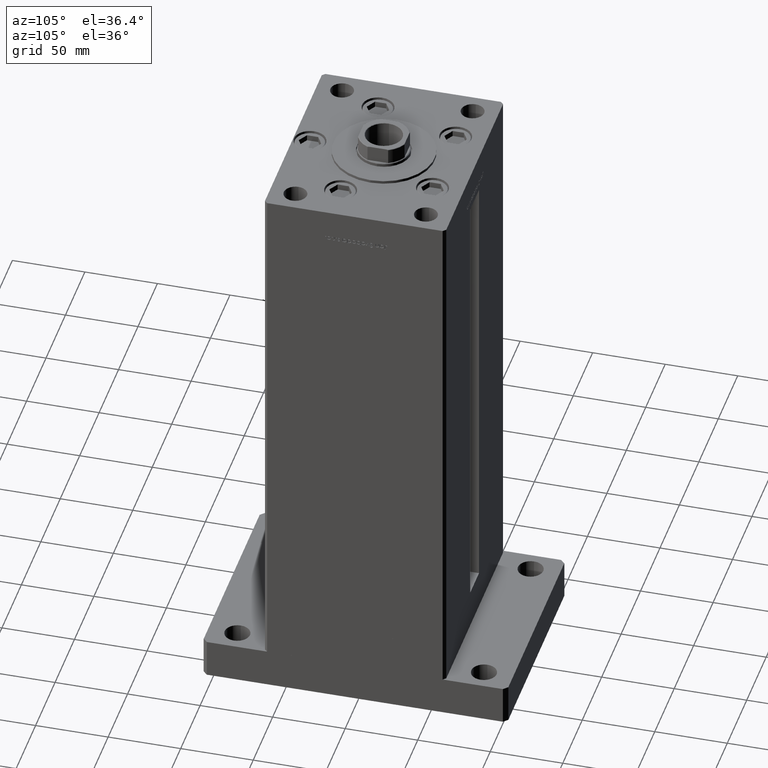
[diagram: clean part render]
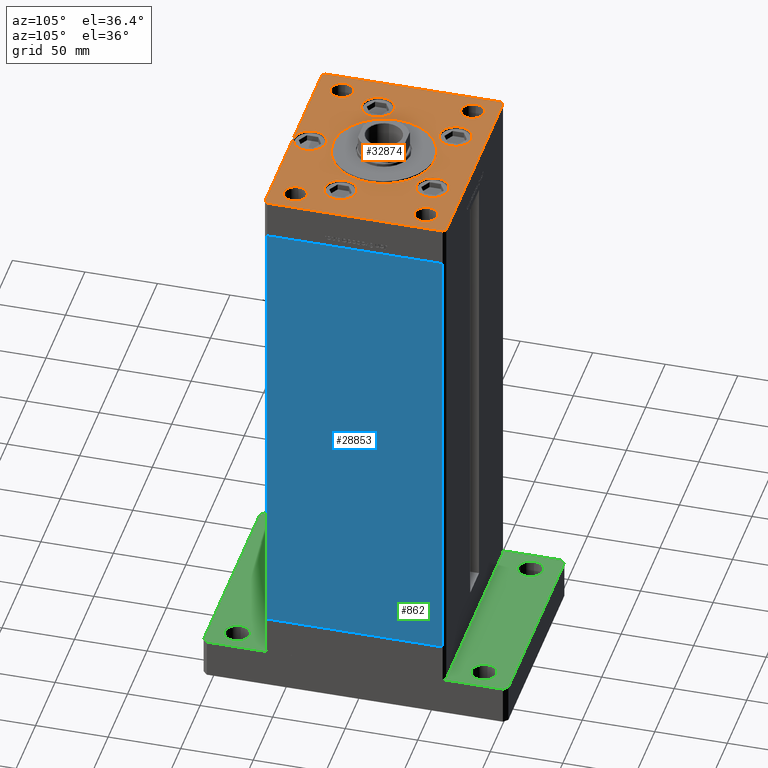
[diagram: same view with three faces highlighted in distinct colors, each labeled with its STEP entity id]
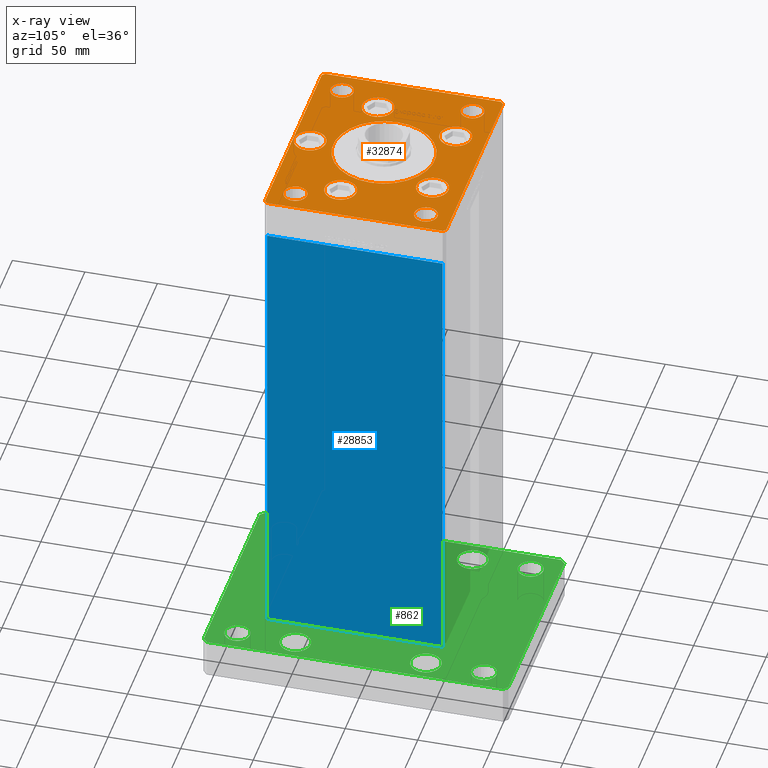
[diagram: x-ray of the same camera — body ghosted, the three highlighted faces saturated]
A machine part, auxiliary view with three faces highlighted in distinct colors.
The next image is the same camera in x-ray (body ghosted, the three faces saturated) — at least one of them is partly hidden behind the body in this view.
Their STEP definitions:

[orange] entity #32874 — the highlighted planar face has unit normal (0, 0, 1).
#297 = EDGE_CURVE ( 'NONE', #40450, #46614, #1445, .T. ) ;
#457 = VERTEX_POINT ( 'NONE', #6543 ) ;
#499 = VERTEX_POINT ( 'NONE', #52852 ) ;
#593 = VECTOR ( 'NONE', #22694, 1000.000000000000000 ) ;
#683 = DIRECTION ( 'NONE',  ( 0.000000000000000000, 0.000000000000000000, 1.000000000000000000 ) ) ;
#1009 = DIRECTION ( 'NONE',  ( 1.000000000000000000, 0.000000000000000000, 0.000000000000000000 ) ) ;
#1331 = LINE ( 'NONE', #6055, #593 ) ;
#1402 = VECTOR ( 'NONE', #50080, 1000.000000000000000 ) ;
#1414 = AXIS2_PLACEMENT_3D ( 'NONE', #33463, #24606, #3525 ) ;
#1445 = CIRCLE ( 'NONE', #51046, 8.000000000000007105 ) ;
#1467 = CARTESIAN_POINT ( 'NONE',  ( -48.08326112068523628, -16.99999999999998934, 0.000000000000000000 ) ) ;
#1871 = EDGE_LOOP ( 'NONE', ( #25810, #46498 ) ) ;
#2207 = EDGE_CURVE ( 'NONE', #38446, #31201, #29755, .T. ) ;
#2318 = AXIS2_PLACEMENT_3D ( 'NONE', #45309, #52413, #14430 ) ;
#2548 = EDGE_CURVE ( 'NONE', #7327, #8424, #45376, .T. ) ;
#2853 = EDGE_CURVE ( 'NONE', #29995, #54459, #22676, .T. ) ;
#3464 = DIRECTION ( 'NONE',  ( 1.000000000000000000, 0.000000000000000000, 0.000000000000000000 ) ) ;
#3525 = DIRECTION ( 'NONE',  ( 1.000000000000000000, 0.000000000000000000, 0.000000000000000000 ) ) ;
#3633 = DIRECTION ( 'NONE',  ( 0.000000000000000000, 0.000000000000000000, 1.000000000000000000 ) ) ;
#3862 = FACE_BOUND ( 'NONE', #1871, .T. ) ;
#3959 = DIRECTION ( 'NONE',  ( 0.000000000000000000, 0.000000000000000000, 1.000000000000000000 ) ) ;
#4135 = FACE_BOUND ( 'NONE', #14221, .T. ) ;
#4188 = DIRECTION ( 'NONE',  ( 1.000000000000000000, 0.000000000000000000, 0.000000000000000000 ) ) ;
#4350 = DIRECTION ( 'NONE',  ( 0.7071067811865474617, -0.7071067811865474617, 0.000000000000000000 ) ) ;
#4483 = DIRECTION ( 'NONE',  ( 1.000000000000000000, 0.000000000000000000, 0.000000000000000000 ) ) ;
#4486 = VECTOR ( 'NONE', #4350, 1000.000000000000114 ) ;
#5024 = VERTEX_POINT ( 'NONE', #33971 ) ;
#5028 = CARTESIAN_POINT ( 'NONE',  ( 51.99999999999999289, 45.00000000000000000, 0.000000000000000000 ) ) ;
#5468 = EDGE_LOOP ( 'NONE', ( #34345, #18735 ) ) ;
#5604 = CARTESIAN_POINT ( 'NONE',  ( -48.08326112068523628, -16.99999999999998934, 0.000000000000000000 ) ) ;
#5706 = ORIENTED_EDGE ( 'NONE', *, *, #22140, .F. ) ;
#5787 = CIRCLE ( 'NONE', #11957, 7.999999999999992895 ) ;
#5843 = EDGE_CURVE ( 'NONE', #499, #9740, #38937, .T. ) ;
#5960 = ORIENTED_EDGE ( 'NONE', *, *, #14711, .T. ) ;
#5984 = AXIS2_PLACEMENT_3D ( 'NONE', #41148, #28969, #3464 ) ;
#6055 = CARTESIAN_POINT ( 'NONE',  ( 75.00000000000001421, -60.49999999999992184, 0.000000000000000000 ) ) ;
#6461 = AXIS2_PLACEMENT_3D ( 'NONE', #8130, #3959, #20888 ) ;
#6543 = CARTESIAN_POINT ( 'NONE',  ( -59.08326112068523628, -16.99999999999998934, 0.000000000000000000 ) ) ;
#6880 = DIRECTION ( 'NONE',  ( 0.000000000000000000, 0.000000000000000000, 1.000000000000000000 ) ) ;
#7091 = EDGE_CURVE ( 'NONE', #11064, #44422, #50375, .T. ) ;
#7134 = CARTESIAN_POINT ( 'NONE',  ( 75.00000000000001421, 60.50000000000002842, 0.000000000000000000 ) ) ;
#7327 = VERTEX_POINT ( 'NONE', #45598 ) ;
#8130 = CARTESIAN_POINT ( 'NONE',  ( 29.73102073172061921, 41.43749999999997868, 0.000000000000000000 ) ) ;
#8181 = ORIENTED_EDGE ( 'NONE', *, *, #2853, .F. ) ;
#8424 = VERTEX_POINT ( 'NONE', #44171 ) ;
#8548 = EDGE_CURVE ( 'NONE', #31201, #38446, #32886, .T. ) ;
#8753 = CARTESIAN_POINT ( 'NONE',  ( -67.99999999999998579, 45.00000000000000711, 0.000000000000000000 ) ) ;
#8903 = DIRECTION ( 'NONE',  ( 0.000000000000000000, 0.000000000000000000, 1.000000000000000000 ) ) ;
#9122 = FACE_BOUND ( 'NONE', #18268, .T. ) ;
#9272 = CARTESIAN_POINT ( 'NONE',  ( -60.00000000000000000, 45.00000000000000711, 0.000000000000000000 ) ) ;
#9289 = CIRCLE ( 'NONE', #54454, 11.00000000000000355 ) ;
#9517 = ORIENTED_EDGE ( 'NONE', *, *, #39728, .F. ) ;
#9740 = VERTEX_POINT ( 'NONE', #52101 ) ;
#10048 = CARTESIAN_POINT ( 'NONE',  ( 73.00000000000001421, 62.50000000000000000, 0.000000000000000000 ) ) ;
#10134 = EDGE_CURVE ( 'NONE', #22430, #12176, #47928, .T. ) ;
#10220 = DIRECTION ( 'NONE',  ( 1.000000000000000000, 0.000000000000000000, 0.000000000000000000 ) ) ;
#10349 = DIRECTION ( 'NONE',  ( 1.000000000000000000, 0.000000000000000000, 0.000000000000000000 ) ) ;
#11064 = VERTEX_POINT ( 'NONE', #19047 ) ;
#11163 = CIRCLE ( 'NONE', #1414, 8.000000000000000000 ) ;
#11672 = VERTEX_POINT ( 'NONE', #51359 ) ;
#11957 = AXIS2_PLACEMENT_3D ( 'NONE', #17020, #21183, #50825 ) ;
#12094 = ORIENTED_EDGE ( 'NONE', *, *, #54017, .F. ) ;
#12126 = CARTESIAN_POINT ( 'NONE',  ( 11.00000000000000000, -51.00000000000000000, 0.000000000000000000 ) ) ;
#12156 = DIRECTION ( 'NONE',  ( -0.000000000000000000, -0.000000000000000000, -1.000000000000000000 ) ) ;
#12176 = VERTEX_POINT ( 'NONE', #51978 ) ;
#12429 = EDGE_CURVE ( 'NONE', #33175, #457, #20609, .T. ) ;
#12675 = DIRECTION ( 'NONE',  ( 0.000000000000000000, -1.000000000000000000, 0.000000000000000000 ) ) ;
#12721 = FACE_BOUND ( 'NONE', #31534, .T. ) ;
#12884 = DIRECTION ( 'NONE',  ( 1.000000000000000000, 0.000000000000000000, 0.000000000000000000 ) ) ;
#13050 = CIRCLE ( 'NONE', #49353, 11.00000000000000000 ) ;
#13112 = CARTESIAN_POINT ( 'NONE',  ( 68.00000000000000000, -45.00000000000000000, 0.000000000000000000 ) ) ;
#13205 = CARTESIAN_POINT ( 'NONE',  ( -40.73102073172061921, 41.43749999999997868, 0.000000000000000000 ) ) ;
#13443 = CARTESIAN_POINT ( 'NONE',  ( -72.99999999999998579, 62.49999999999997158, 0.000000000000000000 ) ) ;
#13455 = CARTESIAN_POINT ( 'NONE',  ( 35.00000000000000711, -2.652630106891490698E-15, 0.000000000000000000 ) ) ;
#13774 = EDGE_CURVE ( 'NONE', #54459, #29995, #30377, .T. ) ;
#14221 = EDGE_LOOP ( 'NONE', ( #37671, #9517 ) ) ;
#14430 = DIRECTION ( 'NONE',  ( 1.000000000000000000, 0.000000000000000000, 0.000000000000000000 ) ) ;
#14527 = DIRECTION ( 'NONE',  ( 0.000000000000000000, 0.000000000000000000, 1.000000000000000000 ) ) ;
#14711 = EDGE_CURVE ( 'NONE', #8424, #499, #51634, .T. ) ;
#15438 = CIRCLE ( 'NONE', #48144, 11.00000000000000000 ) ;
#16314 = EDGE_LOOP ( 'NONE', ( #50709, #30853, #54818, #34230, #34679, #5960, #39122, #46070 ) ) ;
#16856 = DIRECTION ( 'NONE',  ( 1.000000000000000000, 0.000000000000000000, 0.000000000000000000 ) ) ;
#17020 = CARTESIAN_POINT ( 'NONE',  ( -60.00000000000000000, 45.00000000000000711, 0.000000000000000000 ) ) ;
#17187 = EDGE_CURVE ( 'NONE', #12176, #22430, #36654, .T. ) ;
#17397 = CARTESIAN_POINT ( 'NONE',  ( -75.00000000000000000, 60.50000000000000000, 0.000000000000000000 ) ) ;
#17528 = VECTOR ( 'NONE', #32883, 1000.000000000000000 ) ;
#17869 = AXIS2_PLACEMENT_3D ( 'NONE', #38980, #22647, #1009 ) ;
#17950 = EDGE_LOOP ( 'NONE', ( #25388, #50088 ) ) ;
#18268 = EDGE_LOOP ( 'NONE', ( #53733, #27280 ) ) ;
#18399 = DIRECTION ( 'NONE',  ( 0.000000000000000000, 0.000000000000000000, 1.000000000000000000 ) ) ;
#18681 = LINE ( 'NONE', #48312, #25527 ) ;
#18735 = ORIENTED_EDGE ( 'NONE', *, *, #8548, .T. ) ;
#19047 = CARTESIAN_POINT ( 'NONE',  ( -75.00000000000000000, -60.50000000000004263, 0.000000000000000000 ) ) ;
#19198 = EDGE_LOOP ( 'NONE', ( #12094, #20924 ) ) ;
#19489 = EDGE_CURVE ( 'NONE', #54727, #19987, #5787, .T. ) ;
#19526 = DIRECTION ( 'NONE',  ( 0.000000000000000000, 0.000000000000000000, 1.000000000000000000 ) ) ;
#19872 = EDGE_LOOP ( 'NONE', ( #23515, #50091 ) ) ;
#19987 = VERTEX_POINT ( 'NONE', #31004 ) ;
#20036 = EDGE_LOOP ( 'NONE', ( #26253, #8181 ) ) ;
#20561 = DIRECTION ( 'NONE',  ( 1.000000000000000000, 0.000000000000000000, 0.000000000000000000 ) ) ;
#20609 = CIRCLE ( 'NONE', #21471, 11.00000000000000355 ) ;
#20790 = PLANE ( 'NONE',  #41436 ) ;
#20888 = DIRECTION ( 'NONE',  ( 1.000000000000000000, 0.000000000000000000, 0.000000000000000000 ) ) ;
#20924 = ORIENTED_EDGE ( 'NONE', *, *, #28368, .F. ) ;
#20996 = CIRCLE ( 'NONE', #28948, 11.00000000000000000 ) ;
#21067 = FACE_BOUND ( 'NONE', #19198, .T. ) ;
#21183 = DIRECTION ( 'NONE',  ( -0.000000000000000000, -0.000000000000000000, -1.000000000000000000 ) ) ;
#21471 = AXIS2_PLACEMENT_3D ( 'NONE', #5604, #44139, #22811 ) ;
#22042 = CARTESIAN_POINT ( 'NONE',  ( 0.000000000000000000, -51.00000000000000000, 0.000000000000000000 ) ) ;
#22140 = EDGE_CURVE ( 'NONE', #46614, #40450, #40242, .T. ) ;
#22430 = VERTEX_POINT ( 'NONE', #13455 ) ;
#22647 = DIRECTION ( 'NONE',  ( 0.000000000000000000, 0.000000000000000000, 1.000000000000000000 ) ) ;
#22676 = CIRCLE ( 'NONE', #2318, 11.00000000000000355 ) ;
#22694 = DIRECTION ( 'NONE',  ( 0.000000000000000000, 1.000000000000000000, 0.000000000000000000 ) ) ;
#22811 = DIRECTION ( 'NONE',  ( 1.000000000000000000, 0.000000000000000000, 0.000000000000000000 ) ) ;
#22849 = EDGE_CURVE ( 'NONE', #457, #33175, #50031, .T. ) ;
#23115 = CARTESIAN_POINT ( 'NONE',  ( 0.000000000000000000, -51.00000000000000000, 0.000000000000000000 ) ) ;
#23515 = ORIENTED_EDGE ( 'NONE', *, *, #17187, .F. ) ;
#23722 = CIRCLE ( 'NONE', #5984, 11.00000000000000355 ) ;
#23820 = AXIS2_PLACEMENT_3D ( 'NONE', #22042, #683, #12884 ) ;
#23937 = DIRECTION ( 'NONE',  ( -1.000000000000000000, 0.000000000000000000, 0.000000000000000000 ) ) ;
#23998 = DIRECTION ( 'NONE',  ( 0.000000000000000000, 0.000000000000000000, 1.000000000000000000 ) ) ;
#24284 = LINE ( 'NONE', #40898, #17528 ) ;
#24606 = DIRECTION ( 'NONE',  ( 0.000000000000000000, 0.000000000000000000, 1.000000000000000000 ) ) ;
#24940 = DIRECTION ( 'NONE',  ( -0.000000000000000000, 0.000000000000000000, 1.000000000000000000 ) ) ;
#25346 = CARTESIAN_POINT ( 'NONE',  ( 68.00000000000000000, 45.00000000000000000, 0.000000000000000000 ) ) ;
#25388 = ORIENTED_EDGE ( 'NONE', *, *, #25950, .F. ) ;
#25453 = DIRECTION ( 'NONE',  ( -1.000000000000000000, 0.000000000000000000, 0.000000000000000000 ) ) ;
#25527 = VECTOR ( 'NONE', #36388, 999.9999999999998863 ) ;
#25674 = VERTEX_POINT ( 'NONE', #54122 ) ;
#25810 = ORIENTED_EDGE ( 'NONE', *, *, #43248, .T. ) ;
#25950 = EDGE_CURVE ( 'NONE', #25674, #37755, #11163, .T. ) ;
#26027 = DIRECTION ( 'NONE',  ( 1.000000000000000000, 0.000000000000000000, 0.000000000000000000 ) ) ;
#26074 = CARTESIAN_POINT ( 'NONE',  ( 60.00000000000000000, 45.00000000000000000, 0.000000000000000000 ) ) ;
#26253 = ORIENTED_EDGE ( 'NONE', *, *, #13774, .F. ) ;
#26456 = DIRECTION ( 'NONE',  ( -0.000000000000000000, -0.000000000000000000, -1.000000000000000000 ) ) ;
#26560 = VERTEX_POINT ( 'NONE', #50096 ) ;
#27030 = CARTESIAN_POINT ( 'NONE',  ( -18.73102073172061921, 41.43749999999997868, 0.000000000000000000 ) ) ;
#27280 = ORIENTED_EDGE ( 'NONE', *, *, #45519, .F. ) ;
#27569 = AXIS2_PLACEMENT_3D ( 'NONE', #27812, #43895, #23937 ) ;
#27751 = CARTESIAN_POINT ( 'NONE',  ( 18.73102073172061921, 41.43749999999997868, 0.000000000000000000 ) ) ;
#27812 = CARTESIAN_POINT ( 'NONE',  ( 60.00000000000000711, -45.00000000000000000, 0.000000000000000000 ) ) ;
#28368 = EDGE_CURVE ( 'NONE', #11672, #29124, #20996, .T. ) ;
#28514 = CARTESIAN_POINT ( 'NONE',  ( 37.08326112068522917, -16.99999999999998934, 0.000000000000000000 ) ) ;
#28793 = AXIS2_PLACEMENT_3D ( 'NONE', #1467, #49137, #40256 ) ;
#28859 = EDGE_CURVE ( 'NONE', #42985, #7327, #1331, .T. ) ;
#28948 = AXIS2_PLACEMENT_3D ( 'NONE', #23115, #14527, #43620 ) ;
#28969 = DIRECTION ( 'NONE',  ( 0.000000000000000000, 0.000000000000000000, 1.000000000000000000 ) ) ;
#29061 = CARTESIAN_POINT ( 'NONE',  ( 60.00000000000000000, 45.00000000000000000, 0.000000000000000000 ) ) ;
#29124 = VERTEX_POINT ( 'NONE', #12126 ) ;
#29154 = VERTEX_POINT ( 'NONE', #28514 ) ;
#29383 = FACE_BOUND ( 'NONE', #20036, .T. ) ;
#29652 = FACE_BOUND ( 'NONE', #17950, .T. ) ;
#29755 = CIRCLE ( 'NONE', #43113, 8.000000000000007105 ) ;
#29995 = VERTEX_POINT ( 'NONE', #27751 ) ;
#30377 = CIRCLE ( 'NONE', #6461, 11.00000000000000355 ) ;
#30834 = CIRCLE ( 'NONE', #50309, 8.000000000000000000 ) ;
#30853 = ORIENTED_EDGE ( 'NONE', *, *, #46992, .T. ) ;
#30877 = CARTESIAN_POINT ( 'NONE',  ( -60.00000000000000711, -45.00000000000000000, 0.000000000000000000 ) ) ;
#31004 = CARTESIAN_POINT ( 'NONE',  ( -52.00000000000000000, 45.00000000000000711, 0.000000000000000000 ) ) ;
#31201 = VERTEX_POINT ( 'NONE', #39261 ) ;
#31406 = AXIS2_PLACEMENT_3D ( 'NONE', #26074, #8903, #4188 ) ;
#31534 = EDGE_LOOP ( 'NONE', ( #34871, #5706 ) ) ;
#31547 = ORIENTED_EDGE ( 'NONE', *, *, #12429, .F. ) ;
#31998 = EDGE_CURVE ( 'NONE', #26560, #29154, #23722, .T. ) ;
#32220 = EDGE_CURVE ( 'NONE', #5024, #42985, #18681, .T. ) ;
#32247 = EDGE_CURVE ( 'NONE', #37755, #25674, #30834, .T. ) ;
#32555 = DIRECTION ( 'NONE',  ( 1.000000000000000000, 0.000000000000000000, 0.000000000000000000 ) ) ;
#32874 = ADVANCED_FACE ( 'NONE', ( #34347, #9122, #29383, #4135, #21067, #46809, #3862, #12721, #29652, #38767, #46536 ), #20790, .T. ) ;
#32883 = DIRECTION ( 'NONE',  ( 1.000000000000000000, 7.604267291953125828E-16, 0.000000000000000000 ) ) ;
#32886 = CIRCLE ( 'NONE', #27569, 8.000000000000007105 ) ;
#33175 = VERTEX_POINT ( 'NONE', #40543 ) ;
#33463 = CARTESIAN_POINT ( 'NONE',  ( -60.00000000000000711, -45.00000000000000000, 0.000000000000000000 ) ) ;
#33491 = LINE ( 'NONE', #17397, #53509 ) ;
#33658 = VECTOR ( 'NONE', #38669, 1000.000000000000000 ) ;
#33971 = CARTESIAN_POINT ( 'NONE',  ( 73.00000000000001421, -62.49999999999991473, 0.000000000000000000 ) ) ;
#34008 = AXIS2_PLACEMENT_3D ( 'NONE', #36957, #19526, #32555 ) ;
#34230 = ORIENTED_EDGE ( 'NONE', *, *, #28859, .T. ) ;
#34345 = ORIENTED_EDGE ( 'NONE', *, *, #2207, .T. ) ;
#34347 = FACE_BOUND ( 'NONE', #19872, .T. ) ;
#34679 = ORIENTED_EDGE ( 'NONE', *, *, #2548, .T. ) ;
#34871 = ORIENTED_EDGE ( 'NONE', *, *, #297, .F. ) ;
#35318 = DIRECTION ( 'NONE',  ( -1.000000000000000000, 0.000000000000000000, 0.000000000000000000 ) ) ;
#36388 = DIRECTION ( 'NONE',  ( 0.7071067811865489050, 0.7071067811865462405, 0.000000000000000000 ) ) ;
#36654 = CIRCLE ( 'NONE', #34008, 35.00000000000000711 ) ;
#36957 = CARTESIAN_POINT ( 'NONE',  ( 0.000000000000000000, -6.938893903907228378E-15, 0.000000000000000000 ) ) ;
#37046 = EDGE_CURVE ( 'NONE', #9740, #11064, #33491, .T. ) ;
#37671 = ORIENTED_EDGE ( 'NONE', *, *, #31998, .F. ) ;
#37755 = VERTEX_POINT ( 'NONE', #38728 ) ;
#37795 = EDGE_CURVE ( 'NONE', #52394, #46031, #15438, .T. ) ;
#38446 = VERTEX_POINT ( 'NONE', #13112 ) ;
#38669 = DIRECTION ( 'NONE',  ( -0.7071067811865549002, -0.7071067811865401342, 0.000000000000000000 ) ) ;
#38728 = CARTESIAN_POINT ( 'NONE',  ( -68.00000000000000000, -45.00000000000000000, 0.000000000000000000 ) ) ;
#38767 = FACE_OUTER_BOUND ( 'NONE', #16314, .T. ) ;
#38937 = LINE ( 'NONE', #13443, #33658 ) ;
#38980 = CARTESIAN_POINT ( 'NONE',  ( 0.000000000000000000, -6.938893903907228378E-15, 0.000000000000000000 ) ) ;
#39122 = ORIENTED_EDGE ( 'NONE', *, *, #5843, .T. ) ;
#39261 = CARTESIAN_POINT ( 'NONE',  ( 52.00000000000000000, -45.00000000000000000, 0.000000000000000000 ) ) ;
#39728 = EDGE_CURVE ( 'NONE', #29154, #26560, #9289, .T. ) ;
#39868 = ORIENTED_EDGE ( 'NONE', *, *, #22849, .F. ) ;
#40242 = CIRCLE ( 'NONE', #31406, 8.000000000000007105 ) ;
#40256 = DIRECTION ( 'NONE',  ( 1.000000000000000000, 0.000000000000000000, 0.000000000000000000 ) ) ;
#40353 = CARTESIAN_POINT ( 'NONE',  ( 75.00000000000001421, -60.49999999999992184, 0.000000000000000000 ) ) ;
#40450 = VERTEX_POINT ( 'NONE', #25346 ) ;
#40543 = CARTESIAN_POINT ( 'NONE',  ( -37.08326112068522917, -16.99999999999998934, 0.000000000000000000 ) ) ;
#40898 = CARTESIAN_POINT ( 'NONE',  ( -73.00000000000001421, -62.50000000000002842, 0.000000000000000000 ) ) ;
#41148 = CARTESIAN_POINT ( 'NONE',  ( 48.08326112068523628, -16.99999999999998934, 0.000000000000000000 ) ) ;
#41436 = AXIS2_PLACEMENT_3D ( 'NONE', #50716, #24940, #26027 ) ;
#41604 = CARTESIAN_POINT ( 'NONE',  ( -29.73102073172061921, 41.43749999999997868, 0.000000000000000000 ) ) ;
#42036 = CARTESIAN_POINT ( 'NONE',  ( -75.00000000000000000, -60.50000000000004263, 0.000000000000000000 ) ) ;
#42985 = VERTEX_POINT ( 'NONE', #40353 ) ;
#43113 = AXIS2_PLACEMENT_3D ( 'NONE', #45706, #12156, #25453 ) ;
#43248 = EDGE_CURVE ( 'NONE', #19987, #54727, #43959, .T. ) ;
#43272 = CIRCLE ( 'NONE', #23820, 11.00000000000000000 ) ;
#43585 = DIRECTION ( 'NONE',  ( -1.000000000000000000, -1.901066822988281950E-16, 0.000000000000000000 ) ) ;
#43620 = DIRECTION ( 'NONE',  ( 1.000000000000000000, 0.000000000000000000, 0.000000000000000000 ) ) ;
#43895 = DIRECTION ( 'NONE',  ( -0.000000000000000000, -0.000000000000000000, -1.000000000000000000 ) ) ;
#43959 = CIRCLE ( 'NONE', #45700, 7.999999999999992895 ) ;
#44139 = DIRECTION ( 'NONE',  ( 0.000000000000000000, 0.000000000000000000, 1.000000000000000000 ) ) ;
#44171 = CARTESIAN_POINT ( 'NONE',  ( 73.00000000000001421, 62.50000000000000000, 0.000000000000000000 ) ) ;
#44422 = VERTEX_POINT ( 'NONE', #47732 ) ;
#45215 = CARTESIAN_POINT ( 'NONE',  ( 40.73102073172061921, 41.43749999999997868, 0.000000000000000000 ) ) ;
#45309 = CARTESIAN_POINT ( 'NONE',  ( 29.73102073172061921, 41.43749999999997868, 0.000000000000000000 ) ) ;
#45376 = LINE ( 'NONE', #7134, #1402 ) ;
#45519 = EDGE_CURVE ( 'NONE', #46031, #52394, #13050, .T. ) ;
#45598 = CARTESIAN_POINT ( 'NONE',  ( 75.00000000000001421, 60.50000000000002842, 0.000000000000000000 ) ) ;
#45700 = AXIS2_PLACEMENT_3D ( 'NONE', #9272, #26456, #35318 ) ;
#45706 = CARTESIAN_POINT ( 'NONE',  ( 60.00000000000000711, -45.00000000000000000, 0.000000000000000000 ) ) ;
#46031 = VERTEX_POINT ( 'NONE', #13205 ) ;
#46070 = ORIENTED_EDGE ( 'NONE', *, *, #37046, .T. ) ;
#46498 = ORIENTED_EDGE ( 'NONE', *, *, #19489, .T. ) ;
#46536 = FACE_BOUND ( 'NONE', #5468, .T. ) ;
#46614 = VERTEX_POINT ( 'NONE', #5028 ) ;
#46809 = FACE_BOUND ( 'NONE', #53282, .T. ) ;
#46992 = EDGE_CURVE ( 'NONE', #44422, #5024, #24284, .T. ) ;
#47732 = CARTESIAN_POINT ( 'NONE',  ( -73.00000000000001421, -62.50000000000002842, 0.000000000000000000 ) ) ;
#47928 = CIRCLE ( 'NONE', #17869, 35.00000000000000711 ) ;
#48144 = AXIS2_PLACEMENT_3D ( 'NONE', #41604, #3633, #20561 ) ;
#48312 = CARTESIAN_POINT ( 'NONE',  ( 73.00000000000001421, -62.49999999999991473, 0.000000000000000000 ) ) ;
#48810 = DIRECTION ( 'NONE',  ( 0.000000000000000000, 0.000000000000000000, 1.000000000000000000 ) ) ;
#49137 = DIRECTION ( 'NONE',  ( 0.000000000000000000, 0.000000000000000000, 1.000000000000000000 ) ) ;
#49353 = AXIS2_PLACEMENT_3D ( 'NONE', #53102, #23998, #4483 ) ;
#50031 = CIRCLE ( 'NONE', #28793, 11.00000000000000355 ) ;
#50080 = DIRECTION ( 'NONE',  ( -0.7071067811865524577, 0.7071067811865426878, 0.000000000000000000 ) ) ;
#50088 = ORIENTED_EDGE ( 'NONE', *, *, #32247, .F. ) ;
#50091 = ORIENTED_EDGE ( 'NONE', *, *, #10134, .F. ) ;
#50096 = CARTESIAN_POINT ( 'NONE',  ( 59.08326112068523628, -16.99999999999998934, 0.000000000000000000 ) ) ;
#50309 = AXIS2_PLACEMENT_3D ( 'NONE', #30877, #18399, #10349 ) ;
#50375 = LINE ( 'NONE', #42036, #4486 ) ;
#50709 = ORIENTED_EDGE ( 'NONE', *, *, #7091, .T. ) ;
#50716 = CARTESIAN_POINT ( 'NONE',  ( 0.000000000000000000, 0.000000000000000000, 0.000000000000000000 ) ) ;
#50753 = VECTOR ( 'NONE', #43585, 1000.000000000000000 ) ;
#50825 = DIRECTION ( 'NONE',  ( -1.000000000000000000, 0.000000000000000000, 0.000000000000000000 ) ) ;
#51046 = AXIS2_PLACEMENT_3D ( 'NONE', #29061, #48810, #16856 ) ;
#51359 = CARTESIAN_POINT ( 'NONE',  ( -11.00000000000000000, -51.00000000000000000, 0.000000000000000000 ) ) ;
#51634 = LINE ( 'NONE', #10048, #50753 ) ;
#51978 = CARTESIAN_POINT ( 'NONE',  ( -35.00000000000000711, -6.938893903907228378E-15, 0.000000000000000000 ) ) ;
#52101 = CARTESIAN_POINT ( 'NONE',  ( -75.00000000000000000, 60.50000000000000000, 0.000000000000000000 ) ) ;
#52394 = VERTEX_POINT ( 'NONE', #27030 ) ;
#52413 = DIRECTION ( 'NONE',  ( 0.000000000000000000, 0.000000000000000000, 1.000000000000000000 ) ) ;
#52852 = CARTESIAN_POINT ( 'NONE',  ( -72.99999999999998579, 62.49999999999997158, 0.000000000000000000 ) ) ;
#52908 = CARTESIAN_POINT ( 'NONE',  ( 48.08326112068523628, -16.99999999999998934, 0.000000000000000000 ) ) ;
#53102 = CARTESIAN_POINT ( 'NONE',  ( -29.73102073172061921, 41.43749999999997868, 0.000000000000000000 ) ) ;
#53282 = EDGE_LOOP ( 'NONE', ( #31547, #39868 ) ) ;
#53509 = VECTOR ( 'NONE', #12675, 1000.000000000000000 ) ;
#53733 = ORIENTED_EDGE ( 'NONE', *, *, #37795, .F. ) ;
#54017 = EDGE_CURVE ( 'NONE', #29124, #11672, #43272, .T. ) ;
#54122 = CARTESIAN_POINT ( 'NONE',  ( -52.00000000000000711, -45.00000000000000000, 0.000000000000000000 ) ) ;
#54454 = AXIS2_PLACEMENT_3D ( 'NONE', #52908, #6880, #10220 ) ;
#54459 = VERTEX_POINT ( 'NONE', #45215 ) ;
#54727 = VERTEX_POINT ( 'NONE', #8753 ) ;
#54818 = ORIENTED_EDGE ( 'NONE', *, *, #32220, .T. ) ;

[blue] entity #28853 — the highlighted planar face has unit normal (1, -0, 0).
#1894 = FACE_OUTER_BOUND ( 'NONE', #48053, .T. ) ;
#3473 = VECTOR ( 'NONE', #48621, 1000.000000000000000 ) ;
#3967 = LINE ( 'NONE', #34713, #4178 ) ;
#4178 = VECTOR ( 'NONE', #51096, 1000.000000000000000 ) ;
#4829 = DIRECTION ( 'NONE',  ( -0.000000000000000000, -0.000000000000000000, -1.000000000000000000 ) ) ;
#5767 = DIRECTION ( 'NONE',  ( 1.000000000000000000, -2.293849224432141861E-16, 0.000000000000000000 ) ) ;
#6937 = VERTEX_POINT ( 'NONE', #52630 ) ;
#7212 = EDGE_CURVE ( 'NONE', #27855, #41832, #39514, .T. ) ;
#8784 = DIRECTION ( 'NONE',  ( -2.293849224432141861E-16, -1.000000000000000000, 0.000000000000000000 ) ) ;
#10781 = ORIENTED_EDGE ( 'NONE', *, *, #7212, .T. ) ;
#14948 = CARTESIAN_POINT ( 'NONE',  ( 74.99999999999998579, -60.50000000000000000, 317.0000000000000000 ) ) ;
#16699 = CARTESIAN_POINT ( 'NONE',  ( 75.00000000000001421, 60.50000000000000000, 317.0000000000000000 ) ) ;
#20460 = VECTOR ( 'NONE', #8784, 1000.000000000000000 ) ;
#23510 = DIRECTION ( 'NONE',  ( 2.293849224432141861E-16, 1.000000000000000000, 0.000000000000000000 ) ) ;
#25900 = LINE ( 'NONE', #42800, #46650 ) ;
#27288 = CARTESIAN_POINT ( 'NONE',  ( 74.99999999999998579, -60.50000000000000000, 317.0000000000000000 ) ) ;
#27399 = CARTESIAN_POINT ( 'NONE',  ( 75.00000000000001421, 60.50000000000000000, 317.0000000000000000 ) ) ;
#27855 = VERTEX_POINT ( 'NONE', #16699 ) ;
#28083 = AXIS2_PLACEMENT_3D ( 'NONE', #27399, #5767, #23510 ) ;
#28309 = EDGE_CURVE ( 'NONE', #27855, #6937, #25900, .T. ) ;
#28853 = ADVANCED_FACE ( 'NONE', ( #1894 ), #31848, .T. ) ;
#29628 = ORIENTED_EDGE ( 'NONE', *, *, #54135, .T. ) ;
#31848 = PLANE ( 'NONE',  #28083 ) ;
#34713 = CARTESIAN_POINT ( 'NONE',  ( 75.00000000000001421, 60.50000000000000000, 0.000000000000000000 ) ) ;
#34935 = ORIENTED_EDGE ( 'NONE', *, *, #48944, .F. ) ;
#38420 = CARTESIAN_POINT ( 'NONE',  ( 75.00000000000001421, 60.50000000000000000, 317.0000000000000000 ) ) ;
#39514 = LINE ( 'NONE', #38420, #20460 ) ;
#41192 = CARTESIAN_POINT ( 'NONE',  ( 74.99999999999998579, -60.50000000000000000, 0.000000000000000000 ) ) ;
#41832 = VERTEX_POINT ( 'NONE', #14948 ) ;
#42800 = CARTESIAN_POINT ( 'NONE',  ( 75.00000000000001421, 60.50000000000000000, 317.0000000000000000 ) ) ;
#46650 = VECTOR ( 'NONE', #4829, 1000.000000000000000 ) ;
#48053 = EDGE_LOOP ( 'NONE', ( #34935, #52207, #10781, #29628 ) ) ;
#48621 = DIRECTION ( 'NONE',  ( -0.000000000000000000, -0.000000000000000000, -1.000000000000000000 ) ) ;
#48944 = EDGE_CURVE ( 'NONE', #6937, #54656, #3967, .T. ) ;
#51096 = DIRECTION ( 'NONE',  ( -2.293849224432141861E-16, -1.000000000000000000, 0.000000000000000000 ) ) ;
#52207 = ORIENTED_EDGE ( 'NONE', *, *, #28309, .F. ) ;
#52630 = CARTESIAN_POINT ( 'NONE',  ( 75.00000000000001421, 60.50000000000000000, 0.000000000000000000 ) ) ;
#52793 = LINE ( 'NONE', #27288, #3473 ) ;
#54135 = EDGE_CURVE ( 'NONE', #41832, #54656, #52793, .T. ) ;
#54656 = VERTEX_POINT ( 'NONE', #41192 ) ;

[green] entity #862 — the highlighted planar face has unit normal (0, 0, 1).
#310 = DIRECTION ( 'NONE',  ( 0.000000000000000000, 0.000000000000000000, 1.000000000000000000 ) ) ;
#335 = CARTESIAN_POINT ( 'NONE',  ( 70.50000000000000000, -45.00000000000000711, 27.00000000000000000 ) ) ;
#417 = CARTESIAN_POINT ( 'NONE',  ( 70.50000000000000000, 45.00000000000000711, 27.00000000000000000 ) ) ;
#862 = ADVANCED_FACE ( 'NONE', ( #32269, #11458, #37487, #23950, #40834, #7856, #2873, #20612, #15345, #41654 ), #49163, .T. ) ;
#1175 = CARTESIAN_POINT ( 'NONE',  ( 0.000000000000000000, 0.000000000000000000, 27.00000000000000000 ) ) ;
#1252 = DIRECTION ( 'NONE',  ( 1.000000000000000000, 0.000000000000000000, 0.000000000000000000 ) ) ;
#1346 = CIRCLE ( 'NONE', #19975, 8.750000000000007105 ) ;
#1355 = CARTESIAN_POINT ( 'NONE',  ( 72.00000000000004263, 105.0000000000000284, 27.00000000000000000 ) ) ;
#1719 = EDGE_CURVE ( 'NONE', #8174, #44975, #29846, .T. ) ;
#1886 = VECTOR ( 'NONE', #20399, 1000.000000000000114 ) ;
#1960 = EDGE_CURVE ( 'NONE', #33547, #5790, #12012, .T. ) ;
#2087 = LINE ( 'NONE', #52834, #38977 ) ;
#2380 = CARTESIAN_POINT ( 'NONE',  ( -51.25000000000000000, 84.99999999999997158, 27.00000000000000000 ) ) ;
#2467 = CARTESIAN_POINT ( 'NONE',  ( 60.00000000000000000, 45.00000000000000711, 27.00000000000000000 ) ) ;
#2482 = EDGE_CURVE ( 'NONE', #29581, #11032, #2968, .T. ) ;
#2873 = FACE_BOUND ( 'NONE', #11223, .T. ) ;
#2968 = LINE ( 'NONE', #4042, #49214 ) ;
#3196 = VECTOR ( 'NONE', #38921, 1000.000000000000000 ) ;
#3204 = LINE ( 'NONE', #46407, #1886 ) ;
#3382 = EDGE_CURVE ( 'NONE', #41295, #37932, #46590, .T. ) ;
#3718 = DIRECTION ( 'NONE',  ( 1.000000000000000000, 0.000000000000000000, 0.000000000000000000 ) ) ;
#3857 = DIRECTION ( 'NONE',  ( 0.000000000000000000, 0.000000000000000000, 1.000000000000000000 ) ) ;
#3899 = ORIENTED_EDGE ( 'NONE', *, *, #8485, .F. ) ;
#4042 = CARTESIAN_POINT ( 'NONE',  ( 72.00000000000001421, -104.9999999999999005, 27.00000000000000000 ) ) ;
#4158 = EDGE_CURVE ( 'NONE', #14509, #46733, #13161, .T. ) ;
#4916 = EDGE_CURVE ( 'NONE', #11032, #18243, #41191, .T. ) ;
#5110 = CARTESIAN_POINT ( 'NONE',  ( -75.00000000000001421, 102.0000000000000000, 27.00000000000000000 ) ) ;
#5422 = ORIENTED_EDGE ( 'NONE', *, *, #45410, .F. ) ;
#5427 = DIRECTION ( 'NONE',  ( 0.000000000000000000, 0.000000000000000000, 1.000000000000000000 ) ) ;
#5454 = EDGE_LOOP ( 'NONE', ( #11981, #51522 ) ) ;
#5737 = AXIS2_PLACEMENT_3D ( 'NONE', #36833, #16054, #15783 ) ;
#5790 = VERTEX_POINT ( 'NONE', #45642 ) ;
#6128 = EDGE_CURVE ( 'NONE', #20582, #29920, #23931, .T. ) ;
#6742 = DIRECTION ( 'NONE',  ( 0.000000000000000000, 0.000000000000000000, 1.000000000000000000 ) ) ;
#6844 = CIRCLE ( 'NONE', #19236, 10.49999999999999467 ) ;
#7243 = ORIENTED_EDGE ( 'NONE', *, *, #24663, .F. ) ;
#7280 = EDGE_CURVE ( 'NONE', #50796, #29581, #2087, .T. ) ;
#7856 = FACE_OUTER_BOUND ( 'NONE', #33081, .T. ) ;
#8174 = VERTEX_POINT ( 'NONE', #14589 ) ;
#8254 = EDGE_CURVE ( 'NONE', #46733, #50796, #3204, .T. ) ;
#8416 = CARTESIAN_POINT ( 'NONE',  ( -75.00000000000001421, 102.0000000000000000, 27.00000000000000000 ) ) ;
#8485 = EDGE_CURVE ( 'NONE', #37932, #41295, #16059, .T. ) ;
#8803 = DIRECTION ( 'NONE',  ( 0.000000000000000000, 0.000000000000000000, 1.000000000000000000 ) ) ;
#8929 = CARTESIAN_POINT ( 'NONE',  ( -35.00000000000000711, 0.000000000000000000, 27.00000000000000000 ) ) ;
#8974 = VECTOR ( 'NONE', #24577, 1000.000000000000000 ) ;
#9317 = DIRECTION ( 'NONE',  ( 0.000000000000000000, 0.000000000000000000, 1.000000000000000000 ) ) ;
#9704 = DIRECTION ( 'NONE',  ( 0.000000000000000000, 0.000000000000000000, 1.000000000000000000 ) ) ;
#10999 = CIRCLE ( 'NONE', #41965, 8.750000000000007105 ) ;
#11032 = VERTEX_POINT ( 'NONE', #13766 ) ;
#11223 = EDGE_LOOP ( 'NONE', ( #5422, #7243 ) ) ;
#11323 = AXIS2_PLACEMENT_3D ( 'NONE', #2467, #44594, #36285 ) ;
#11458 = FACE_BOUND ( 'NONE', #17980, .T. ) ;
#11545 = CARTESIAN_POINT ( 'NONE',  ( 49.50000000000000000, 45.00000000000000711, 27.00000000000000000 ) ) ;
#11656 = DIRECTION ( 'NONE',  ( 1.000000000000000000, 0.000000000000000000, 0.000000000000000000 ) ) ;
#11759 = DIRECTION ( 'NONE',  ( 0.000000000000000000, 0.000000000000000000, 1.000000000000000000 ) ) ;
#11981 = ORIENTED_EDGE ( 'NONE', *, *, #1719, .F. ) ;
#12012 = CIRCLE ( 'NONE', #12135, 10.50000000000000178 ) ;
#12017 = CARTESIAN_POINT ( 'NONE',  ( -72.00000000000002842, 105.0000000000000000, 27.00000000000000000 ) ) ;
#12135 = AXIS2_PLACEMENT_3D ( 'NONE', #18588, #9704, #39069 ) ;
#12650 = CARTESIAN_POINT ( 'NONE',  ( 60.00000000000000000, 84.99999999999998579, 27.00000000000000000 ) ) ;
#12656 = CARTESIAN_POINT ( 'NONE',  ( -60.00000000000000711, 84.99999999999997158, 27.00000000000000000 ) ) ;
#13048 = ORIENTED_EDGE ( 'NONE', *, *, #53395, .T. ) ;
#13126 = VERTEX_POINT ( 'NONE', #33556 ) ;
#13161 = LINE ( 'NONE', #5110, #3196 ) ;
#13748 = AXIS2_PLACEMENT_3D ( 'NONE', #32877, #40616, #32605 ) ;
#13766 = CARTESIAN_POINT ( 'NONE',  ( 75.00000000000000000, -101.9999999999999005, 27.00000000000000000 ) ) ;
#13908 = DIRECTION ( 'NONE',  ( 0.000000000000000000, 0.000000000000000000, 1.000000000000000000 ) ) ;
#14509 = VERTEX_POINT ( 'NONE', #8416 ) ;
#14518 = CARTESIAN_POINT ( 'NONE',  ( 68.75000000000000000, 84.99999999999998579, 27.00000000000000000 ) ) ;
#14589 = CARTESIAN_POINT ( 'NONE',  ( 51.24999999999995737, -85.00000000000001421, 27.00000000000000000 ) ) ;
#14856 = DIRECTION ( 'NONE',  ( 1.000000000000000000, 7.709882115452476194E-16, 0.000000000000000000 ) ) ;
#15218 = LINE ( 'NONE', #19660, #18964 ) ;
#15345 = FACE_BOUND ( 'NONE', #27656, .T. ) ;
#15380 = CARTESIAN_POINT ( 'NONE',  ( -59.99999999999997158, -85.00000000000001421, 27.00000000000000000 ) ) ;
#15783 = DIRECTION ( 'NONE',  ( 1.000000000000000000, 0.000000000000000000, 0.000000000000000000 ) ) ;
#16054 = DIRECTION ( 'NONE',  ( 0.000000000000000000, 0.000000000000000000, 1.000000000000000000 ) ) ;
#16059 = CIRCLE ( 'NONE', #17790, 10.50000000000000178 ) ;
#17388 = CARTESIAN_POINT ( 'NONE',  ( 51.24999999999998579, 84.99999999999998579, 27.00000000000000000 ) ) ;
#17620 = AXIS2_PLACEMENT_3D ( 'NONE', #37667, #3857, #36591 ) ;
#17790 = AXIS2_PLACEMENT_3D ( 'NONE', #18958, #6742, #49149 ) ;
#17794 = VERTEX_POINT ( 'NONE', #32154 ) ;
#17980 = EDGE_LOOP ( 'NONE', ( #18238, #32791 ) ) ;
#18238 = ORIENTED_EDGE ( 'NONE', *, *, #1960, .F. ) ;
#18243 = VERTEX_POINT ( 'NONE', #45837 ) ;
#18289 = DIRECTION ( 'NONE',  ( 0.000000000000000000, 0.000000000000000000, 1.000000000000000000 ) ) ;
#18588 = CARTESIAN_POINT ( 'NONE',  ( -60.00000000000000000, 45.00000000000001421, 27.00000000000000000 ) ) ;
#18845 = CARTESIAN_POINT ( 'NONE',  ( -60.00000000000000000, 45.00000000000001421, 27.00000000000000000 ) ) ;
#18958 = CARTESIAN_POINT ( 'NONE',  ( -60.00000000000000000, -45.00000000000000000, 27.00000000000000000 ) ) ;
#18964 = VECTOR ( 'NONE', #54018, 1000.000000000000000 ) ;
#19027 = ORIENTED_EDGE ( 'NONE', *, *, #46142, .F. ) ;
#19236 = AXIS2_PLACEMENT_3D ( 'NONE', #34413, #310, #42721 ) ;
#19660 = CARTESIAN_POINT ( 'NONE',  ( 75.00000000000001421, 102.0000000000000142, 27.00000000000000000 ) ) ;
#19975 = AXIS2_PLACEMENT_3D ( 'NONE', #31613, #48501, #22744 ) ;
#20161 = AXIS2_PLACEMENT_3D ( 'NONE', #43406, #5427, #21542 ) ;
#20399 = DIRECTION ( 'NONE',  ( 0.7071067811865474617, -0.7071067811865474617, 0.000000000000000000 ) ) ;
#20582 = VERTEX_POINT ( 'NONE', #46930 ) ;
#20612 = FACE_BOUND ( 'NONE', #39172, .T. ) ;
#20835 = ORIENTED_EDGE ( 'NONE', *, *, #46168, .F. ) ;
#20875 = CARTESIAN_POINT ( 'NONE',  ( -70.50000000000000000, -45.00000000000000000, 27.00000000000000000 ) ) ;
#20938 = CIRCLE ( 'NONE', #22719, 10.49999999999999467 ) ;
#21017 = CIRCLE ( 'NONE', #21932, 8.750000000000007105 ) ;
#21542 = DIRECTION ( 'NONE',  ( 1.000000000000000000, 0.000000000000000000, 0.000000000000000000 ) ) ;
#21832 = CARTESIAN_POINT ( 'NONE',  ( 60.00000000000000000, -45.00000000000000711, 27.00000000000000000 ) ) ;
#21932 = AXIS2_PLACEMENT_3D ( 'NONE', #12650, #9317, #29578 ) ;
#22170 = DIRECTION ( 'NONE',  ( 1.000000000000000000, 0.000000000000000000, 0.000000000000000000 ) ) ;
#22470 = ORIENTED_EDGE ( 'NONE', *, *, #2482, .T. ) ;
#22713 = AXIS2_PLACEMENT_3D ( 'NONE', #38144, #33994, #1252 ) ;
#22719 = AXIS2_PLACEMENT_3D ( 'NONE', #21832, #8803, #11656 ) ;
#22744 = DIRECTION ( 'NONE',  ( 1.000000000000000000, 0.000000000000000000, 0.000000000000000000 ) ) ;
#23561 = CARTESIAN_POINT ( 'NONE',  ( -72.00000000000002842, 105.0000000000000000, 27.00000000000000000 ) ) ;
#23924 = EDGE_CURVE ( 'NONE', #13126, #42299, #30555, .T. ) ;
#23931 = CIRCLE ( 'NONE', #30147, 35.00000000000000711 ) ;
#23950 = FACE_BOUND ( 'NONE', #47008, .T. ) ;
#24209 = VERTEX_POINT ( 'NONE', #11545 ) ;
#24577 = DIRECTION ( 'NONE',  ( 6.802837160693364103E-17, 1.000000000000000000, 0.000000000000000000 ) ) ;
#24663 = EDGE_CURVE ( 'NONE', #46470, #46851, #1346, .T. ) ;
#24774 = LINE ( 'NONE', #12017, #32536 ) ;
#24779 = VERTEX_POINT ( 'NONE', #23561 ) ;
#25317 = CIRCLE ( 'NONE', #44778, 10.50000000000000178 ) ;
#25332 = EDGE_CURVE ( 'NONE', #41863, #38227, #44792, .T. ) ;
#25414 = ORIENTED_EDGE ( 'NONE', *, *, #3382, .F. ) ;
#25655 = CARTESIAN_POINT ( 'NONE',  ( 72.00000000000004263, 105.0000000000000284, 27.00000000000000000 ) ) ;
#25869 = DIRECTION ( 'NONE',  ( 0.000000000000000000, 0.000000000000000000, 1.000000000000000000 ) ) ;
#26001 = CARTESIAN_POINT ( 'NONE',  ( 68.74999999999997158, -85.00000000000001421, 27.00000000000000000 ) ) ;
#26232 = DIRECTION ( 'NONE',  ( 1.000000000000000000, 0.000000000000000000, 0.000000000000000000 ) ) ;
#26403 = DIRECTION ( 'NONE',  ( 1.000000000000000000, 0.000000000000000000, 0.000000000000000000 ) ) ;
#27656 = EDGE_LOOP ( 'NONE', ( #41891, #35442 ) ) ;
#28112 = CARTESIAN_POINT ( 'NONE',  ( 0.000000000000000000, 0.000000000000000000, 27.00000000000000000 ) ) ;
#28142 = VERTEX_POINT ( 'NONE', #2380 ) ;
#28508 = ORIENTED_EDGE ( 'NONE', *, *, #42794, .F. ) ;
#29578 = DIRECTION ( 'NONE',  ( 1.000000000000000000, 0.000000000000000000, 0.000000000000000000 ) ) ;
#29581 = VERTEX_POINT ( 'NONE', #54210 ) ;
#29846 = CIRCLE ( 'NONE', #47536, 8.750000000000007105 ) ;
#29920 = VERTEX_POINT ( 'NONE', #8929 ) ;
#30147 = AXIS2_PLACEMENT_3D ( 'NONE', #1175, #25869, #34193 ) ;
#30555 = CIRCLE ( 'NONE', #5737, 10.49999999999999467 ) ;
#30646 = ORIENTED_EDGE ( 'NONE', *, *, #6128, .F. ) ;
#30751 = CIRCLE ( 'NONE', #50215, 8.750000000000007105 ) ;
#30917 = CARTESIAN_POINT ( 'NONE',  ( -68.74999999999997158, -85.00000000000001421, 27.00000000000000000 ) ) ;
#30991 = EDGE_CURVE ( 'NONE', #48648, #24209, #48477, .T. ) ;
#31313 = LINE ( 'NONE', #1355, #46788 ) ;
#31613 = CARTESIAN_POINT ( 'NONE',  ( 60.00000000000000000, 84.99999999999998579, 27.00000000000000000 ) ) ;
#31820 = CARTESIAN_POINT ( 'NONE',  ( -49.49999999999999289, -45.00000000000000000, 27.00000000000000000 ) ) ;
#32154 = CARTESIAN_POINT ( 'NONE',  ( -68.75000000000000000, 84.99999999999997158, 27.00000000000000000 ) ) ;
#32269 = FACE_BOUND ( 'NONE', #50301, .T. ) ;
#32446 = AXIS2_PLACEMENT_3D ( 'NONE', #15380, #11759, #3718 ) ;
#32536 = VECTOR ( 'NONE', #45839, 1000.000000000000114 ) ;
#32605 = DIRECTION ( 'NONE',  ( 1.000000000000000000, 0.000000000000000000, 0.000000000000000000 ) ) ;
#32719 = CIRCLE ( 'NONE', #17620, 35.00000000000000711 ) ;
#32791 = ORIENTED_EDGE ( 'NONE', *, *, #41664, .F. ) ;
#32837 = ORIENTED_EDGE ( 'NONE', *, *, #4916, .T. ) ;
#32877 = CARTESIAN_POINT ( 'NONE',  ( 59.99999999999997158, -85.00000000000001421, 27.00000000000000000 ) ) ;
#33081 = EDGE_LOOP ( 'NONE', ( #51463, #22470, #32837, #47620, #13048, #36740, #46994, #49795 ) ) ;
#33268 = CARTESIAN_POINT ( 'NONE',  ( -70.50000000000000000, 45.00000000000001421, 27.00000000000000000 ) ) ;
#33348 = DIRECTION ( 'NONE',  ( 1.000000000000000000, 0.000000000000000000, -0.000000000000000000 ) ) ;
#33352 = AXIS2_PLACEMENT_3D ( 'NONE', #28112, #45005, #33348 ) ;
#33547 = VERTEX_POINT ( 'NONE', #33268 ) ;
#33556 = CARTESIAN_POINT ( 'NONE',  ( 49.50000000000000000, -45.00000000000000711, 27.00000000000000000 ) ) ;
#33839 = CARTESIAN_POINT ( 'NONE',  ( -71.99999999999998579, -105.0000000000000142, 27.00000000000000000 ) ) ;
#33994 = DIRECTION ( 'NONE',  ( 0.000000000000000000, 0.000000000000000000, 1.000000000000000000 ) ) ;
#34010 = DIRECTION ( 'NONE',  ( 0.000000000000000000, 0.000000000000000000, 1.000000000000000000 ) ) ;
#34193 = DIRECTION ( 'NONE',  ( 1.000000000000000000, 0.000000000000000000, 0.000000000000000000 ) ) ;
#34413 = CARTESIAN_POINT ( 'NONE',  ( 60.00000000000000000, 45.00000000000000711, 27.00000000000000000 ) ) ;
#35442 = ORIENTED_EDGE ( 'NONE', *, *, #30991, .F. ) ;
#35756 = EDGE_CURVE ( 'NONE', #29920, #20582, #32719, .T. ) ;
#36285 = DIRECTION ( 'NONE',  ( 1.000000000000000000, 0.000000000000000000, 0.000000000000000000 ) ) ;
#36492 = ORIENTED_EDGE ( 'NONE', *, *, #35756, .F. ) ;
#36591 = DIRECTION ( 'NONE',  ( 1.000000000000000000, 0.000000000000000000, 0.000000000000000000 ) ) ;
#36740 = ORIENTED_EDGE ( 'NONE', *, *, #48873, .T. ) ;
#36833 = CARTESIAN_POINT ( 'NONE',  ( 60.00000000000000000, -45.00000000000000711, 27.00000000000000000 ) ) ;
#36843 = EDGE_CURVE ( 'NONE', #18243, #48663, #15218, .T. ) ;
#37299 = CARTESIAN_POINT ( 'NONE',  ( 75.00000000000000000, -101.9999999999999005, 27.00000000000000000 ) ) ;
#37487 = FACE_BOUND ( 'NONE', #53786, .T. ) ;
#37622 = EDGE_CURVE ( 'NONE', #17794, #28142, #10999, .T. ) ;
#37667 = CARTESIAN_POINT ( 'NONE',  ( 0.000000000000000000, 0.000000000000000000, 27.00000000000000000 ) ) ;
#37858 = DIRECTION ( 'NONE',  ( 0.7071067811865459074, 0.7071067811865491270, 0.000000000000000000 ) ) ;
#37932 = VERTEX_POINT ( 'NONE', #31820 ) ;
#38144 = CARTESIAN_POINT ( 'NONE',  ( -60.00000000000000000, -45.00000000000000000, 27.00000000000000000 ) ) ;
#38227 = VERTEX_POINT ( 'NONE', #30917 ) ;
#38864 = DIRECTION ( 'NONE',  ( 0.000000000000000000, 0.000000000000000000, 1.000000000000000000 ) ) ;
#38921 = DIRECTION ( 'NONE',  ( 1.360567432138672081E-16, -1.000000000000000000, 0.000000000000000000 ) ) ;
#38977 = VECTOR ( 'NONE', #14856, 1000.000000000000000 ) ;
#39069 = DIRECTION ( 'NONE',  ( 1.000000000000000000, 0.000000000000000000, 0.000000000000000000 ) ) ;
#39172 = EDGE_LOOP ( 'NONE', ( #25414, #3899 ) ) ;
#40091 = ORIENTED_EDGE ( 'NONE', *, *, #25332, .F. ) ;
#40259 = EDGE_CURVE ( 'NONE', #44975, #8174, #53627, .T. ) ;
#40616 = DIRECTION ( 'NONE',  ( 0.000000000000000000, 0.000000000000000000, 1.000000000000000000 ) ) ;
#40834 = FACE_BOUND ( 'NONE', #51668, .T. ) ;
#41191 = LINE ( 'NONE', #37299, #8974 ) ;
#41295 = VERTEX_POINT ( 'NONE', #20875 ) ;
#41654 = FACE_BOUND ( 'NONE', #5454, .T. ) ;
#41664 = EDGE_CURVE ( 'NONE', #5790, #33547, #25317, .T. ) ;
#41863 = VERTEX_POINT ( 'NONE', #50670 ) ;
#41891 = ORIENTED_EDGE ( 'NONE', *, *, #45569, .F. ) ;
#41965 = AXIS2_PLACEMENT_3D ( 'NONE', #51893, #13908, #46637 ) ;
#42299 = VERTEX_POINT ( 'NONE', #335 ) ;
#42721 = DIRECTION ( 'NONE',  ( 1.000000000000000000, 0.000000000000000000, 0.000000000000000000 ) ) ;
#42794 = EDGE_CURVE ( 'NONE', #42299, #13126, #20938, .T. ) ;
#43406 = CARTESIAN_POINT ( 'NONE',  ( -59.99999999999997158, -85.00000000000001421, 27.00000000000000000 ) ) ;
#44594 = DIRECTION ( 'NONE',  ( 0.000000000000000000, 0.000000000000000000, 1.000000000000000000 ) ) ;
#44778 = AXIS2_PLACEMENT_3D ( 'NONE', #18845, #18289, #22170 ) ;
#44792 = CIRCLE ( 'NONE', #32446, 8.750000000000007105 ) ;
#44975 = VERTEX_POINT ( 'NONE', #26001 ) ;
#45005 = DIRECTION ( 'NONE',  ( 0.000000000000000000, 0.000000000000000000, 1.000000000000000000 ) ) ;
#45410 = EDGE_CURVE ( 'NONE', #46851, #46470, #21017, .T. ) ;
#45569 = EDGE_CURVE ( 'NONE', #24209, #48648, #6844, .T. ) ;
#45642 = CARTESIAN_POINT ( 'NONE',  ( -49.49999999999999289, 45.00000000000001421, 27.00000000000000000 ) ) ;
#45837 = CARTESIAN_POINT ( 'NONE',  ( 75.00000000000001421, 102.0000000000000142, 27.00000000000000000 ) ) ;
#45839 = DIRECTION ( 'NONE',  ( -0.7071067811865459074, -0.7071067811865491270, 0.000000000000000000 ) ) ;
#46142 = EDGE_CURVE ( 'NONE', #38227, #41863, #48469, .T. ) ;
#46168 = EDGE_CURVE ( 'NONE', #28142, #17794, #30751, .T. ) ;
#46407 = CARTESIAN_POINT ( 'NONE',  ( -74.99999999999998579, -102.0000000000000142, 27.00000000000000000 ) ) ;
#46470 = VERTEX_POINT ( 'NONE', #14518 ) ;
#46590 = CIRCLE ( 'NONE', #22713, 10.50000000000000178 ) ;
#46637 = DIRECTION ( 'NONE',  ( 1.000000000000000000, 0.000000000000000000, 0.000000000000000000 ) ) ;
#46733 = VERTEX_POINT ( 'NONE', #49022 ) ;
#46788 = VECTOR ( 'NONE', #48193, 1000.000000000000000 ) ;
#46851 = VERTEX_POINT ( 'NONE', #17388 ) ;
#46930 = CARTESIAN_POINT ( 'NONE',  ( 35.00000000000000711, 4.286263797015737285E-15, 27.00000000000000000 ) ) ;
#46994 = ORIENTED_EDGE ( 'NONE', *, *, #4158, .T. ) ;
#47008 = EDGE_LOOP ( 'NONE', ( #52080, #20835 ) ) ;
#47449 = CARTESIAN_POINT ( 'NONE',  ( 59.99999999999997158, -85.00000000000001421, 27.00000000000000000 ) ) ;
#47536 = AXIS2_PLACEMENT_3D ( 'NONE', #47449, #38864, #26403 ) ;
#47620 = ORIENTED_EDGE ( 'NONE', *, *, #36843, .T. ) ;
#47961 = ORIENTED_EDGE ( 'NONE', *, *, #23924, .F. ) ;
#48193 = DIRECTION ( 'NONE',  ( -1.000000000000000000, -1.927470528863118062E-16, 0.000000000000000000 ) ) ;
#48469 = CIRCLE ( 'NONE', #20161, 8.750000000000007105 ) ;
#48477 = CIRCLE ( 'NONE', #11323, 10.49999999999999467 ) ;
#48501 = DIRECTION ( 'NONE',  ( 0.000000000000000000, 0.000000000000000000, 1.000000000000000000 ) ) ;
#48648 = VERTEX_POINT ( 'NONE', #417 ) ;
#48663 = VERTEX_POINT ( 'NONE', #25655 ) ;
#48873 = EDGE_CURVE ( 'NONE', #24779, #14509, #24774, .T. ) ;
#49022 = CARTESIAN_POINT ( 'NONE',  ( -74.99999999999998579, -102.0000000000000142, 27.00000000000000000 ) ) ;
#49149 = DIRECTION ( 'NONE',  ( 1.000000000000000000, 0.000000000000000000, 0.000000000000000000 ) ) ;
#49163 = PLANE ( 'NONE',  #33352 ) ;
#49214 = VECTOR ( 'NONE', #37858, 1000.000000000000114 ) ;
#49795 = ORIENTED_EDGE ( 'NONE', *, *, #8254, .T. ) ;
#50215 = AXIS2_PLACEMENT_3D ( 'NONE', #12656, #34010, #26232 ) ;
#50301 = EDGE_LOOP ( 'NONE', ( #36492, #30646 ) ) ;
#50670 = CARTESIAN_POINT ( 'NONE',  ( -51.24999999999996447, -85.00000000000001421, 27.00000000000000000 ) ) ;
#50796 = VERTEX_POINT ( 'NONE', #33839 ) ;
#51463 = ORIENTED_EDGE ( 'NONE', *, *, #7280, .T. ) ;
#51522 = ORIENTED_EDGE ( 'NONE', *, *, #40259, .F. ) ;
#51668 = EDGE_LOOP ( 'NONE', ( #19027, #40091 ) ) ;
#51893 = CARTESIAN_POINT ( 'NONE',  ( -60.00000000000000711, 84.99999999999997158, 27.00000000000000000 ) ) ;
#52080 = ORIENTED_EDGE ( 'NONE', *, *, #37622, .F. ) ;
#52834 = CARTESIAN_POINT ( 'NONE',  ( -71.99999999999998579, -105.0000000000000142, 27.00000000000000000 ) ) ;
#53395 = EDGE_CURVE ( 'NONE', #48663, #24779, #31313, .T. ) ;
#53627 = CIRCLE ( 'NONE', #13748, 8.750000000000007105 ) ;
#53786 = EDGE_LOOP ( 'NONE', ( #47961, #28508 ) ) ;
#54018 = DIRECTION ( 'NONE',  ( -0.7071067811865426878, 0.7071067811865524577, 0.000000000000000000 ) ) ;
#54210 = CARTESIAN_POINT ( 'NONE',  ( 72.00000000000001421, -104.9999999999999005, 27.00000000000000000 ) ) ;